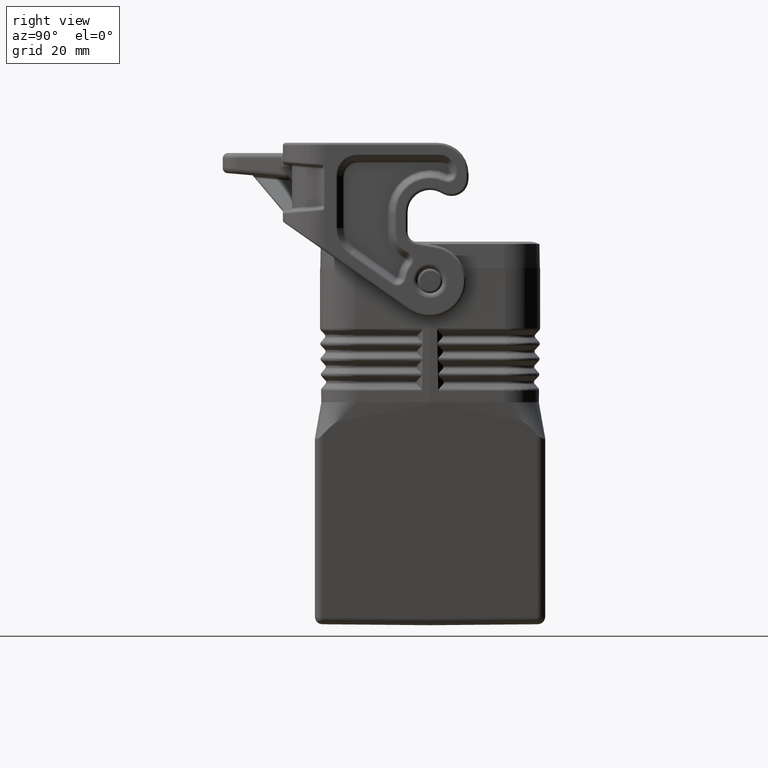
[diagram: clean part render]
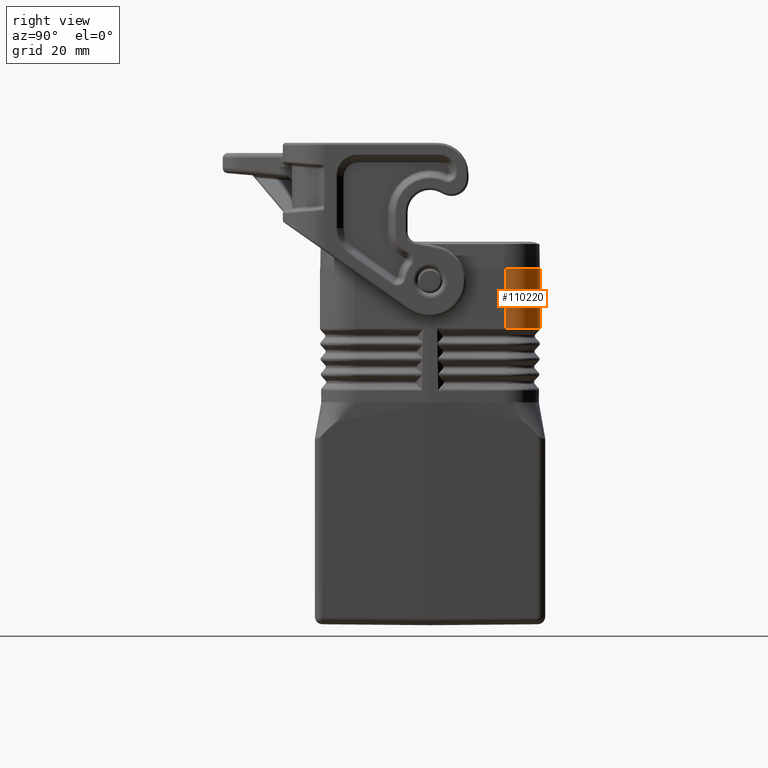
[diagram: same view with one face highlighted and labeled with its STEP entity id]
A machine part, right view. The second image highlights one B-rep face of the part: STEP entity #110220.
In plain terms, the highlighted cylindrical surface (edge-blend (fillet) strip) has radius 7 mm, axis along (0.0175, -0, 0.9998).
Its self-contained STEP definition (entity closure, byte-faithful):
#109400=CARTESIAN_POINT('',(81.12,-1.24498623650369,26.4503986860161));
#109410=DIRECTION('',(5.36762108996749E-18,-0.0174583871680154,
-0.999847590744455));
#109420=DIRECTION('',(-3.07405430019635E-16,0.999847590744455,
-0.0174583871680154));
#109430=AXIS2_PLACEMENT_3D('',#109400,#109410,#109420);
#109440=CYLINDRICAL_SURFACE('',#109430,7.);
#109450=CARTESIAN_POINT('',(80.936789269977,-8.2415217427648,
26.5725655310771));
#109460=DIRECTION('',(5.36762108996749E-18,-0.0174583871680154,
-0.999847590744455));
#109470=VECTOR('',#109460,1.);
#109480=LINE('',#109450,#109470);
#109490=CARTESIAN_POINT('',(80.936789269977,-8.49519019269102,
12.044889746038));
#109500=VERTEX_POINT('',#109490);
#109510=CARTESIAN_POINT('',(80.936789269977,-8.70114133334143,
0.250000000000149));
#109520=VERTEX_POINT('',#109510);
#109530=EDGE_CURVE('',#109500,#109520,#109480,.T.);
#109540=ORIENTED_EDGE('',*,*,#109530,.F.);
#109550=CARTESIAN_POINT('',(81.12,-1.70247266588665,0.250000000000135));
#109560=DIRECTION('',(1.67057759445642E-17,-1.97064586870965E-15,-1.));
#109570=DIRECTION('',(-6.4929300917882E-16,-1.,1.97064586870965E-15));
#109580=AXIS2_PLACEMENT_3D('',#109550,#109560,#109570);
#109590=ELLIPSE('',#109580,7.00106702741367,7.);
#109600=CARTESIAN_POINT('',(74.249363047703,-3.04220955992314,
0.250000000000135));
#109610=VERTEX_POINT('',#109600);
#109620=EDGE_CURVE('',#109520,#109610,#109590,.T.);
#109630=ORIENTED_EDGE('',*,*,#109620,.F.);
#109640=CARTESIAN_POINT('',(81.12,-1.70247266588665,0.249999999999993));
#109650=DIRECTION('',(0.,2.66505956485224E-16,-1.));
#109660=DIRECTION('',(-3.07452288594119E-16,1.,2.66505956485224E-16));
#109670=AXIS2_PLACEMENT_3D('',#109640,#109650,#109660);
#109680=ELLIPSE('',#109670,7.00106702741367,7.);
#109690=CARTESIAN_POINT('',(74.12,-1.70247266588665,0.249999999999993));
#109700=VERTEX_POINT('',#109690);
#109710=EDGE_CURVE('',#109610,#109700,#109680,.T.);
#109720=ORIENTED_EDGE('',*,*,#109710,.F.);
#109730=CARTESIAN_POINT('',(74.12,-1.2449862365037,26.4503986860161));
#109740=DIRECTION('',(5.36762108996749E-18,-0.0174583871680154,
-0.999847590744455));
#109750=VECTOR('',#109740,1.);
#109760=LINE('',#109730,#109750);
#109770=CARTESIAN_POINT('',(74.12,-1.49766821686395,11.979218338349));
#109780=VERTEX_POINT('',#109770);
#109790=EDGE_CURVE('',#109780,#109700,#109760,.T.);
#109800=ORIENTED_EDGE('',*,*,#109790,.T.);
#109810=CARTESIAN_POINT('',(80.936789269977,-8.49519019269102,
12.044889746038));
#109820=CARTESIAN_POINT('',(80.9134464817525,-8.49457577330798,
12.0450711189614));
#109830=CARTESIAN_POINT('',(80.8902670005982,-8.49384955429804,
12.0452511539162));
#109840=CARTESIAN_POINT('',(80.8437564481098,-8.49216104853434,
12.0456064660234));
#109850=CARTESIAN_POINT('',(80.8204253763835,-8.49119877262485,
12.0457817433651));
#109860=CARTESIAN_POINT('',(80.7124020274541,-8.48619107500155,
12.0465660957277));
#109870=CARTESIAN_POINT('',(80.6280995401594,-8.48075270492027,
12.0471524097229));
#109880=CARTESIAN_POINT('',(80.3466090670399,-8.45747163742543,
12.0490224573845));
#109890=CARTESIAN_POINT('',(80.1500841308782,-8.43279153895907,
12.0501797987205));
#109900=CARTESIAN_POINT('',(79.7596520777825,-8.3668405898816,
12.0521913743478));
#109910=CARTESIAN_POINT('',(79.5659215828383,-8.32559954660648,
12.0530411922665));
#109920=CARTESIAN_POINT('',(78.8142973009775,-8.13195058963382,
12.0557645112551));
#109930=CARTESIAN_POINT('',(78.2744147570105,-7.9188974748385,
12.0564406354965));
#109940=CARTESIAN_POINT('',(77.2593628474208,-7.36492656497837,
12.0550758134857));
#109950=CARTESIAN_POINT('',(76.7881022848327,-7.02614195270353,
12.0530312037958));
#109960=CARTESIAN_POINT('',(76.1519709046604,-6.43706806343496,
12.0480025993561));
#109970=CARTESIAN_POINT('',(75.9524115496746,-6.22791452159152,
12.0460039645596));
#109980=CARTESIAN_POINT('',(75.5802754511074,-5.78615977131973,
12.0413864637766));
#109990=CARTESIAN_POINT('',(75.4080554140343,-5.55398197630917,
12.0387717368995));
#110000=CARTESIAN_POINT('',(74.9356004282234,-4.82707646455448,
12.0300427432757));
#110010=CARTESIAN_POINT('',(74.6818037993037,-4.30516238876938,
12.0230905929733));
#110020=CARTESIAN_POINT('',(74.4332076939839,-3.57671022176216,
12.0125286903141));
#110030=CARTESIAN_POINT('',(74.3788037368088,-3.39293914310264,
12.0097979231819));
#110040=CARTESIAN_POINT('',(74.285211941257,-3.02140099370169,
12.0041450220729));
#110050=CARTESIAN_POINT('',(74.24606348562,-2.83379028480356,
12.0012236560824));
#110060=CARTESIAN_POINT('',(74.1832592234994,-2.45583321464051,
11.9952114262476));
#110070=CARTESIAN_POINT('',(74.1596299601756,-2.26564655703389,
11.9921217131252));
#110080=CARTESIAN_POINT('',(74.1359356675681,-1.97928428060244,
11.9873724650397));
#110090=CARTESIAN_POINT('',(74.129998353239,-1.88368529739087,
11.9857719811376));
#110100=CARTESIAN_POINT('',(74.1240383876853,-1.74015068718274,
11.9833437653151));
#110110=CARTESIAN_POINT('',(74.1225428891331,-1.6922875130981,
11.9825300601349));
#110120=CARTESIAN_POINT('',(74.1210371585897,-1.62049795441519,
11.9813039333165));
#110130=CARTESIAN_POINT('',(74.1206482488186,-1.59604154905602,
11.9808882761601));
#110140=CARTESIAN_POINT('',(74.1201296540631,-1.54685641759584,
11.9800533333474));
#110150=CARTESIAN_POINT('',(74.12,-1.5221276911689,11.9796340476855));
#110160=CARTESIAN_POINT('',(74.12,-1.49766821686395,11.979218338349));
#110170=B_SPLINE_CURVE_WITH_KNOTS('',3,(#109810,#109820,#109830,#109840,
#109850,#109860,#109870,#109880,#109890,#109900,#109910,#109920,#109930,
#109940,#109950,#109960,#109970,#109980,#109990,#110000,#110010,#110020,
#110030,#110040,#110050,#110060,#110070,#110080,#110090,#110100,#110110,
#110120,#110130,#110140,#110150,#110160),.UNSPECIFIED.,.F.,.F.,(4,2,2,2,
2,2,2,2,2,2,2,2,2,2,2,2,2,4),(0.,0.0702936642624508,0.140587328524902,
0.391425297423723,0.979332721663919,1.56723914470012,3.2841539312072,
5.00107121339617,5.85869415226698,6.7163182774358,8.43321031292757,
9.00213936624568,9.57106971580725,10.1400011100237,10.424436446632,
10.566649646333,10.6376901110458,10.7087305757586),.UNSPECIFIED.);
#110180=EDGE_CURVE('',#109500,#109780,#110170,.T.);
#110190=ORIENTED_EDGE('',*,*,#110180,.T.);
#110200=EDGE_LOOP('',(#110190,#109800,#109720,#109630,#109540));
#110210=FACE_OUTER_BOUND('',#110200,.T.);
#110220=ADVANCED_FACE('',(#110210),#109440,.T.);